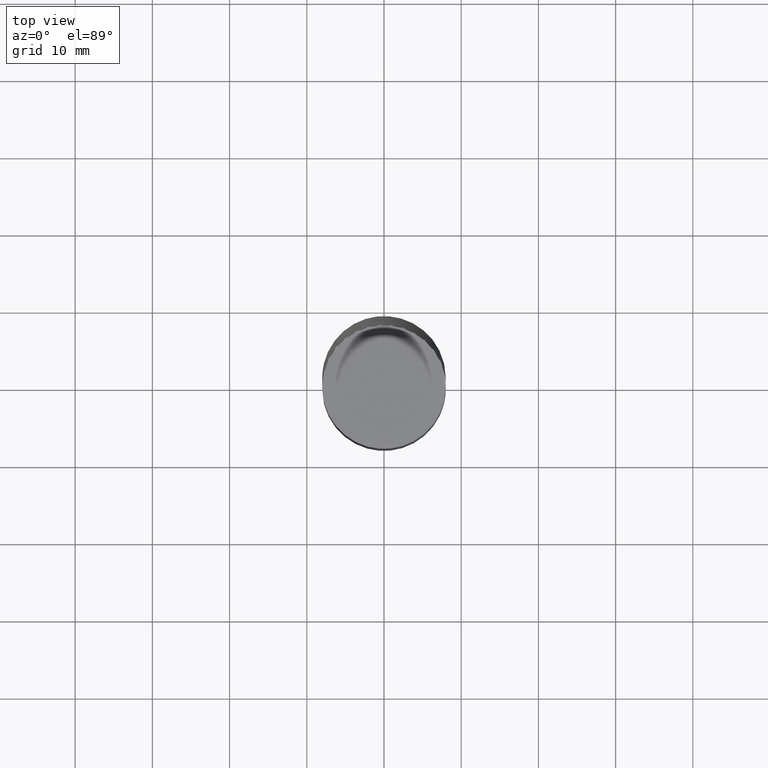
[diagram: clean part render]
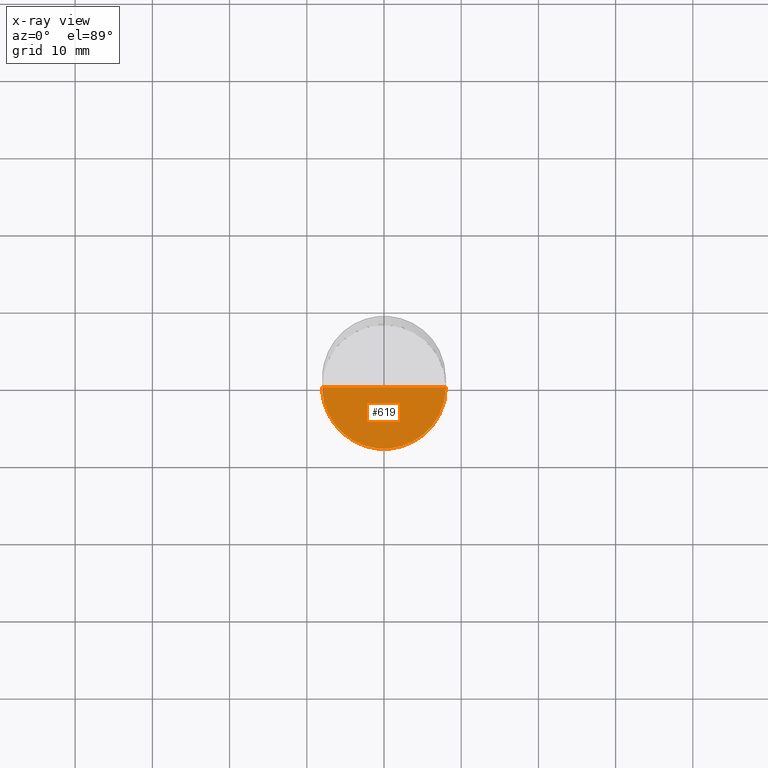
[diagram: x-ray — body ghosted, one internal face saturated and labeled with its STEP entity id]
A machine part, top view, then the same camera in x-ray: the body is ghosted and one INTERNAL B-rep face — a face not visible from any outside direction — is saturated and labeled: STEP entity #619.
In plain terms, the highlighted face is a freeform B-spline surface patch.
Its self-contained STEP definition (entity closure, byte-faithful):
#471=CARTESIAN_POINT('',(8.0,0.0,-5.0));
#475=CARTESIAN_POINT('',(-8.0,0.0,-5.0));
#476=CARTESIAN_POINT('',(0.0,0.0,-5.0));
#483=CARTESIAN_POINT('',(-8.0,-8.0,-5.0));
#484=CARTESIAN_POINT('',(0.0,-8.0,-5.0));
#485=CARTESIAN_POINT('',(8.0,-8.0,-5.0));
#604=(
BOUNDED_SURFACE()
B_SPLINE_SURFACE(1,2,(
(#475,#483,#484,#485,#471),
(#476,#476,#476,#476,#476)
), .UNSPECIFIED.,.F.,.F.,.F.)
B_SPLINE_SURFACE_WITH_KNOTS((2,2),(3,2,3),(
0.0,1.0),(
0.0,0.5,1.0), .UNSPECIFIED.)
GEOMETRIC_REPRESENTATION_ITEM()
RATIONAL_B_SPLINE_SURFACE(((1.0,0.707106781187,1.0,0.707106781187,1.0),
(1.0,0.707106781187,1.0,0.707106781187,1.0)
))
REPRESENTATION_ITEM('')
SURFACE()
);
#605=(
BOUNDED_CURVE()
B_SPLINE_CURVE(2,(#471,#485,#484,#483,#475),.UNSPECIFIED.,.F.,.F.)
B_SPLINE_CURVE_WITH_KNOTS((3,2,3),
(0.0,0.5,1.0),.UNSPECIFIED.)
CURVE()
GEOMETRIC_REPRESENTATION_ITEM()
RATIONAL_B_SPLINE_CURVE((1.0,0.707106781187,1.0,0.707106781187,1.0))
REPRESENTATION_ITEM('')
);
#606=(
BOUNDED_CURVE()
B_SPLINE_CURVE(1,(#475,#476),.UNSPECIFIED.,.F.,.F.)
B_SPLINE_CURVE_WITH_KNOTS((2,2),
(0.0,1.0),.UNSPECIFIED.)
CURVE()
GEOMETRIC_REPRESENTATION_ITEM()
RATIONAL_B_SPLINE_CURVE((1.0,1.0))
REPRESENTATION_ITEM('')
);
#607=(
BOUNDED_CURVE()
B_SPLINE_CURVE(1,(#476,#471),.UNSPECIFIED.,.F.,.F.)
B_SPLINE_CURVE_WITH_KNOTS((2,2),
(0.0,1.0),.UNSPECIFIED.)
CURVE()
GEOMETRIC_REPRESENTATION_ITEM()
RATIONAL_B_SPLINE_CURVE((1.0,1.0))
REPRESENTATION_ITEM('')
);
#608=VERTEX_POINT('',#471);
#609=VERTEX_POINT('',#475);
#610=VERTEX_POINT('',#476);
#611=EDGE_CURVE('',#608,#609,#605,.T.);
#612=EDGE_CURVE('',#609,#610,#606,.T.);
#613=EDGE_CURVE('',#610,#608,#607,.T.);
#614=ORIENTED_EDGE('',*,*,#611,.T.);
#615=ORIENTED_EDGE('',*,*,#612,.T.);
#616=ORIENTED_EDGE('',*,*,#613,.T.);
#617=EDGE_LOOP('',(#614,#615,#616));
#618=FACE_OUTER_BOUND('',#617,.T.);
#619=ADVANCED_FACE('',(#618),#604,.T.);